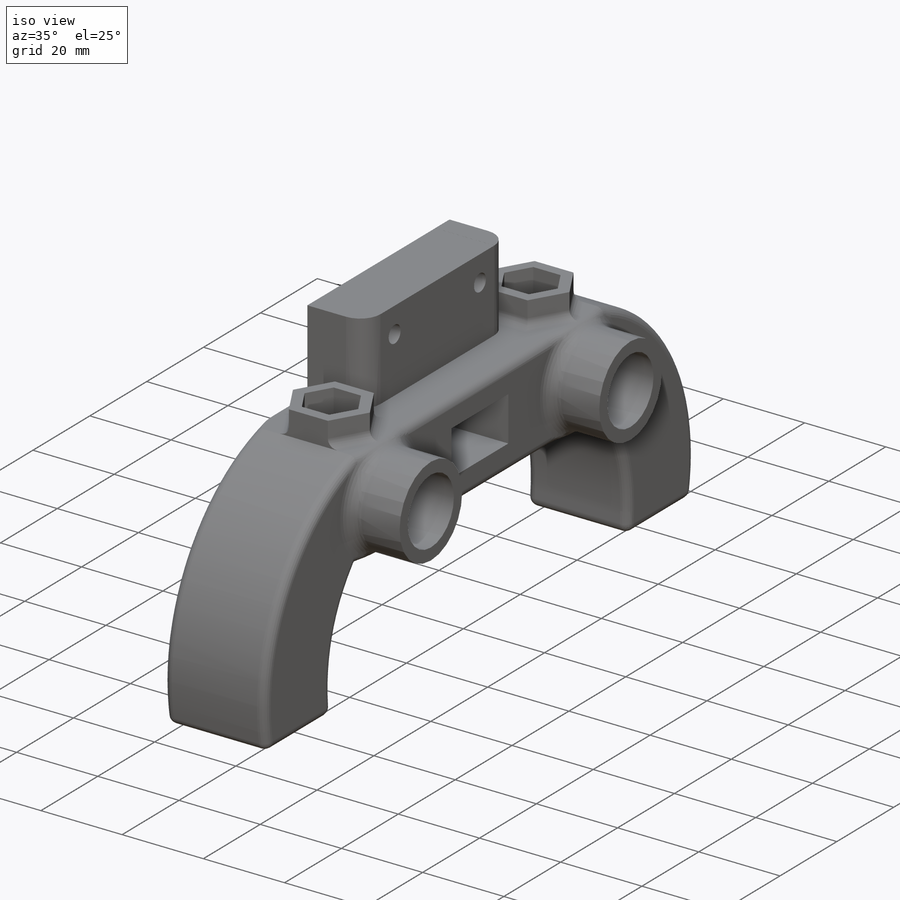
[diagram: iso view]
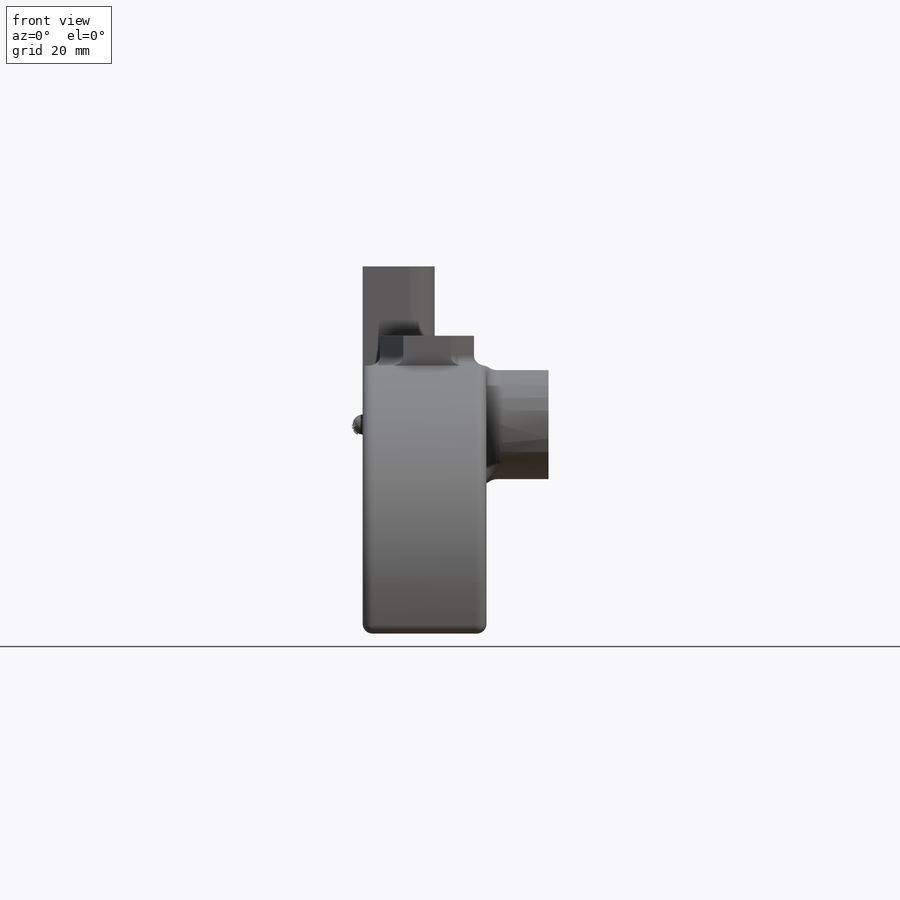
[diagram: front view]
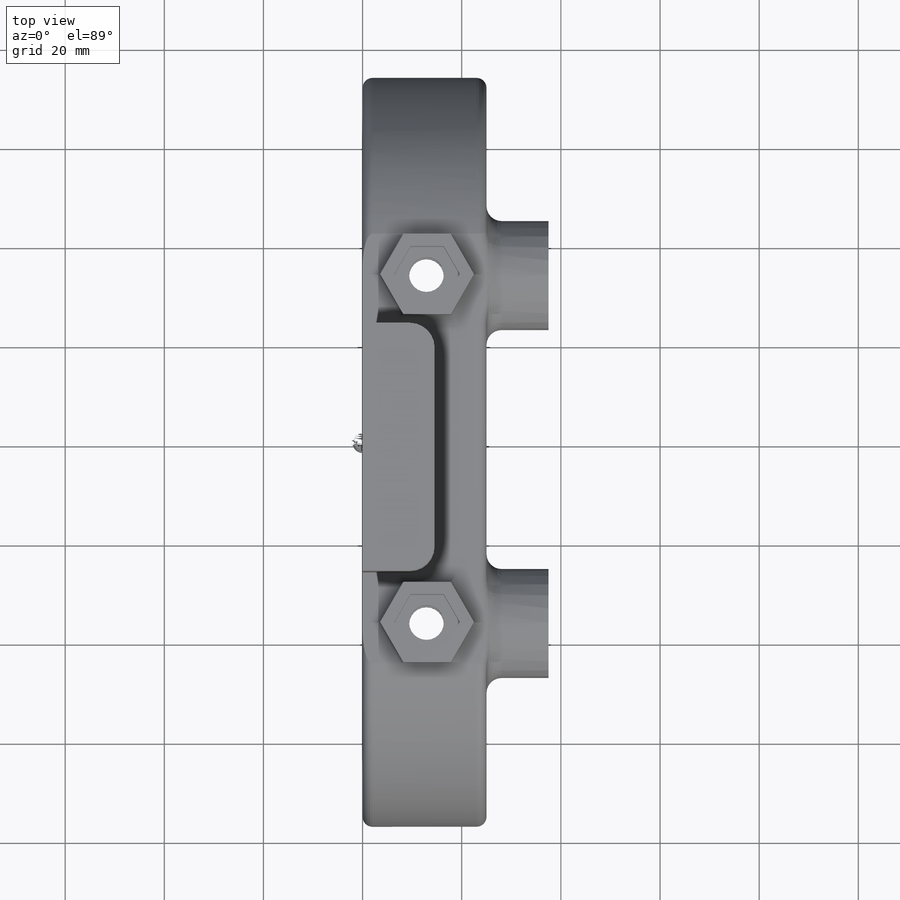
[diagram: top view]
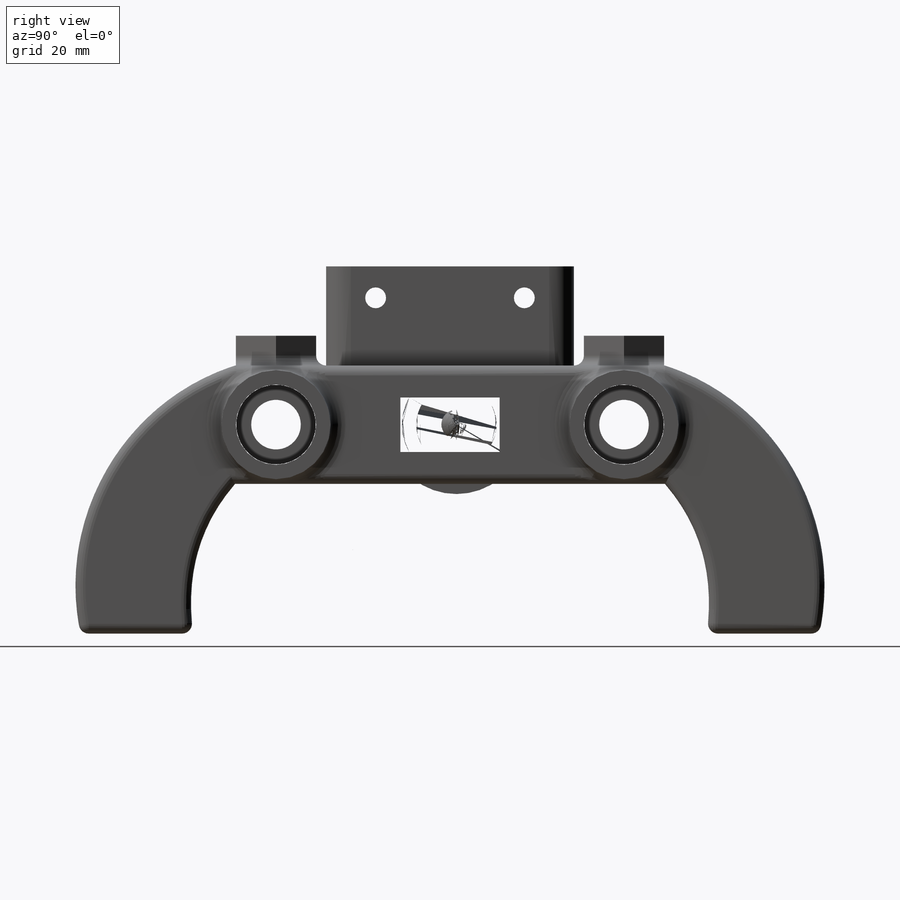
[diagram: right view]
SOLIDWORKS PART (.sldprt)
format: sldprt  version: not decoded by parser v0  size: 802,816 bytes
history: native  units: mm
features: sketch x12, extrude x6, cut_extrude x6, fillet x4, material x1 (+13 scaffold rows collapsed)
feature tree (42):
  scaffold x13  (default folders/planes/origin — collapsed)
  material  "ABS"
  sketch  "Sketch1"  dims[D1=30.0mm]
  extrude  "Boss-Extrude1"  Depth=25mm
  sketch  "Sketch3"  dims[D1=8.25mm]
  extrude  "Boss-Extrude2"  Depth=12.5mm
  fillet  "Fillet1"  Radius=3mm
  sketch  "Sketch4"  dims[D1=~4.750899mm]
  extrude  "Boss-Extrude3"  Depth=3mm
  sketch  "Sketch6"  dims[D1=~3.114811mm]
  cut_extrude  "Cut-Extrude1"  [1 undecoded]
  sketch  "Sketch8"  dims[c1.D1=3.0mm c1.D2=3.0mm c2.D1=2.5mm]
  extrude  "Boss-Extrude4"  Depth=6mm
  extrude  "Boss-Extrude5"  [1 undecoded]
  sketch  "Sketch8<2>"  dims[D1=5.0mm]
  sketch  "Sketch10"
  cut_extrude  "Cut-Extrude2"  Depth=5mm
  sketch  "Sketch11"  dims[D1=~3.488733mm]
  cut_extrude  "Cut-Extrude3"  Depth=0.5mm
  fillet  "Fillet2"  Radius=2mm
  fillet  "Fillet4"  Radius=2mm
  sketch  "Sketch12"  dims[D1=50.0mm]
  extrude  "Boss-Extrude6"  Depth=20mm
  fillet  "Fillet6"  Radius=5mm
  sketch  "Sketch13"
  cut_extrude  "Cut-Extrude4"  Depth=0.01mm
  sketch  "Sketch14"  dims[D1=2.0mm]
  cut_extrude  "Cut-Extrude6"  [1 undecoded]
  sketch  "Sketch15"  dims[D1=11.0mm]
  cut_extrude  "Cut-Extrude7"  [1 undecoded]
decode coverage: 22 of 28 modeling features carry decoded parameters
note: ~ marks probable driven/reference dimensions
note: 4 parameter values undecoded
summary: no parameter record found for 4 features
note: suppression state not decoded; provenance and decode notes live in map.json
